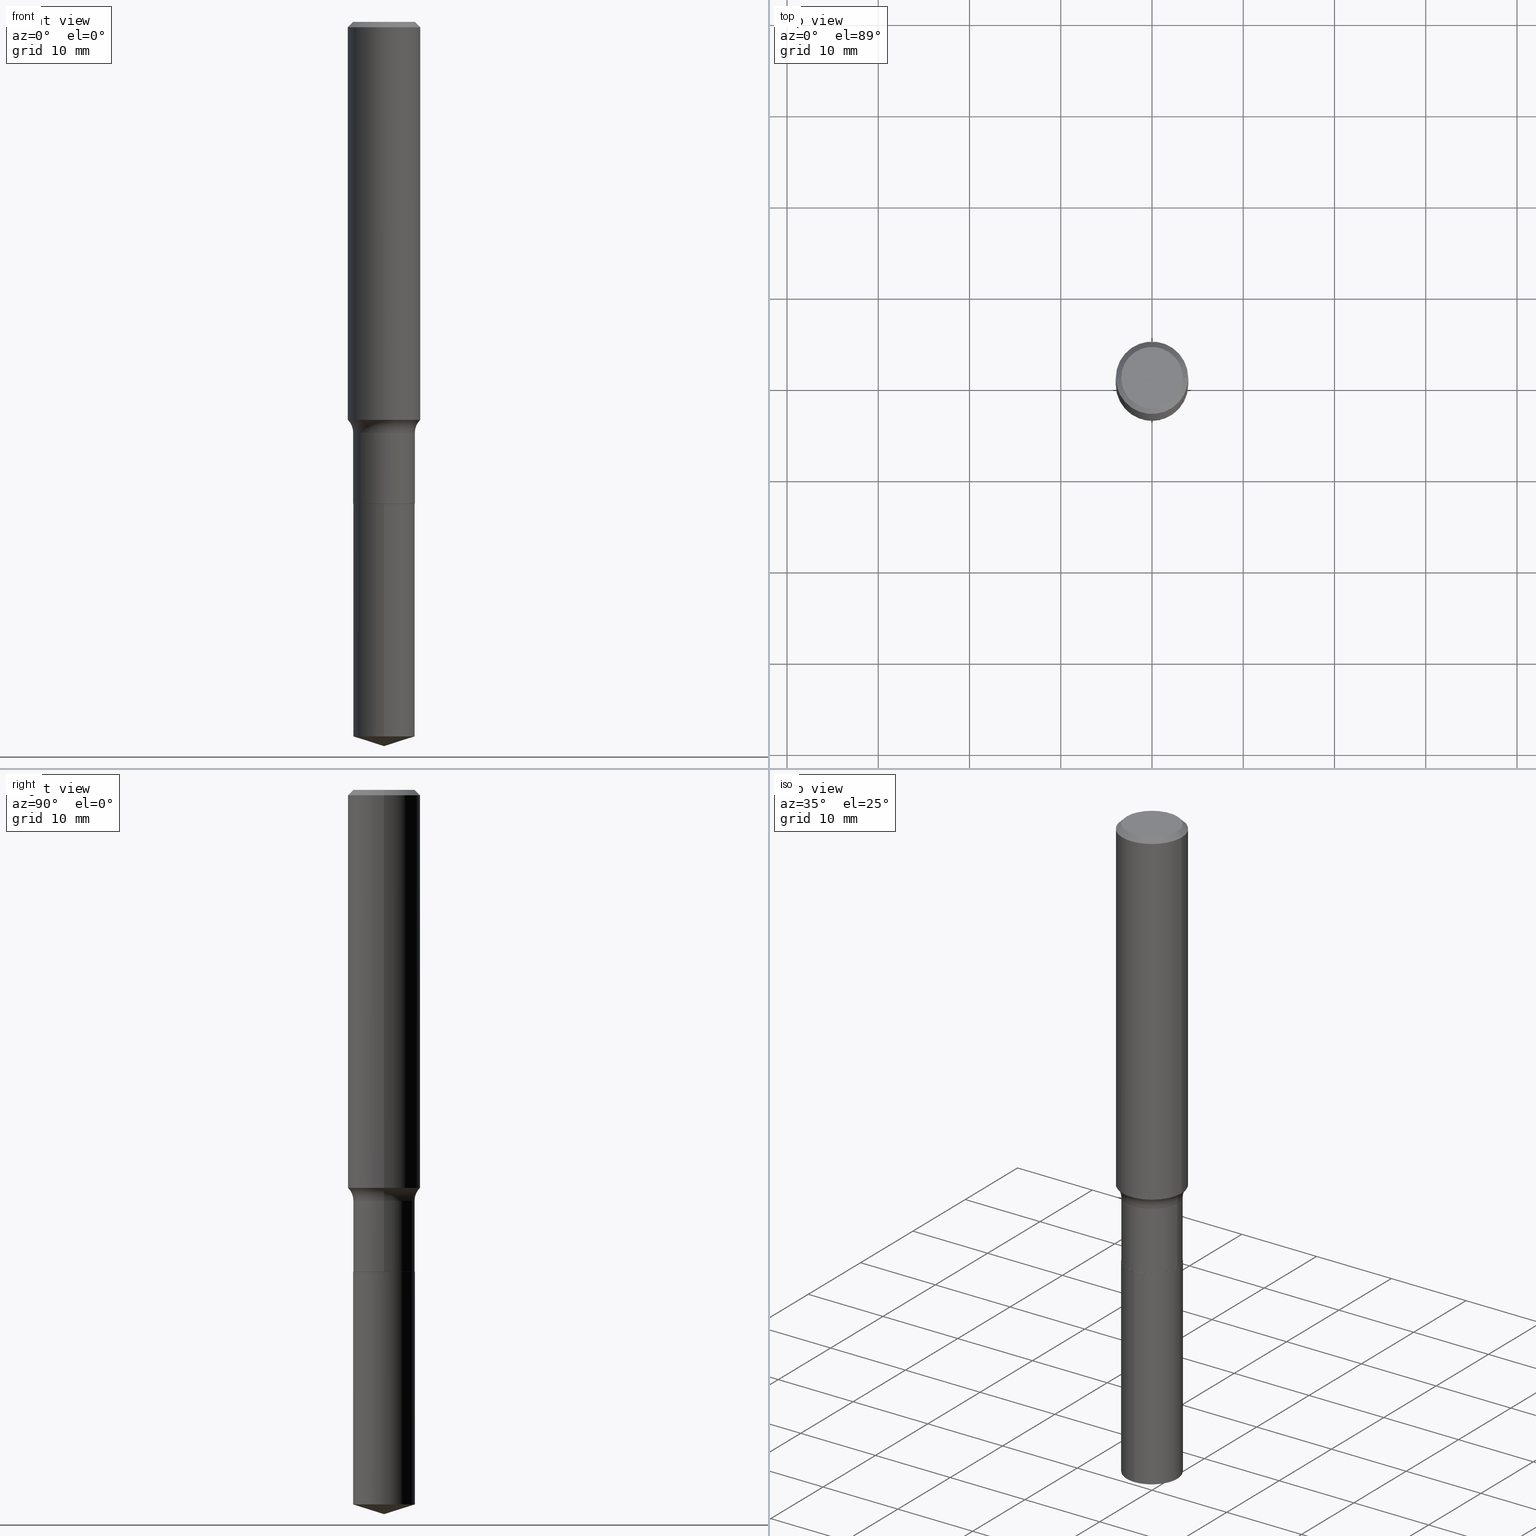
[diagram: canonical four-view strip — front | top / right | iso, engineering-drawing reading convention]
A machine part, canonical four-view strip (front | top / right | iso — engineering-drawing reading convention). The complete STEP part file that produces these views, byte-faithful:
ISO-10303-21;
HEADER;
FILE_DESCRIPTION (( 'STEP AP203' ),
    '1' );
FILE_NAME ('51607.STEP',
    '2024-04-19T13:08:31',
    ( '' ),
    ( '' ),
    'SwSTEP 2.0',
    'SolidWorks 2023',
    '' );
FILE_SCHEMA (( 'CONFIG_CONTROL_DESIGN' ));
ENDSEC;

DATA;
#1 = CARTESIAN_POINT ( 'NONE',  ( 4.198978237127225302E-29, -5.995028078075716865E-15, -1.717044284722451630 ) ) ;
#2 = CIRCLE ( 'NONE', #283, 0.07799999999999999989 ) ;
#3 = CC_DESIGN_APPROVAL ( #52, ( #251 ) ) ;
#4 = DIRECTION ( 'NONE',  ( 1.000000000000000000, -6.982962677686265922E-15, 0.000000000000000000 ) ) ;
#5 = MANIFOLD_SOLID_BREP ( 'Body-Move/Copy2[1]', #272 ) ;
#6 = EDGE_CURVE ( 'NONE', #360, #139, #62, .T. ) ;
#7 = LINE ( 'NONE', #467, #10 ) ;
#8 = ORIENTED_EDGE ( 'NONE', *, *, #163, .F. ) ;
#9 = DIRECTION ( 'NONE',  ( 1.000000000000000000, -6.982962677686270655E-15, 0.000000000000000000 ) ) ;
#10 = VECTOR ( 'NONE', #274, 39.37007874015748143 ) ;
#11 = CC_DESIGN_APPROVAL ( #45, ( #39 ) ) ;
#12 =( LENGTH_UNIT ( ) NAMED_UNIT ( * ) SI_UNIT ( $, .METRE. ) );
#13 = CARTESIAN_POINT ( 'NONE',  ( 5.081684179252714350E-29, -7.255298222116057555E-15, -2.078000000000000291 ) ) ;
#14 = CC_DESIGN_DATE_AND_TIME_ASSIGNMENT ( #432, #317, ( #251 ) ) ;
#15 = EDGE_CURVE ( 'NONE', #438, #214, #229, .T. ) ;
#16 = APPROVAL_ROLE ( '' ) ;
#17 = DIRECTION ( 'NONE',  ( -1.000000000000000000, 7.105427357600997914E-15, 0.000000000000000000 ) ) ;
#18 = APPROVAL_STATUS ( 'not_yet_approved' ) ;
#19 = ORIENTED_EDGE ( 'NONE', *, *, #389, .T. ) ;
#20 = VECTOR ( 'NONE', #261, 39.37007874015748143 ) ;
#21 = APPROVAL_DATE_TIME ( #233, #52 ) ;
#22 = EDGE_LOOP ( 'NONE', ( #481, #206, #66, #306 ) ) ;
#23 = ORIENTED_EDGE ( 'NONE', *, *, #440, .F. ) ;
#24 = ADVANCED_FACE ( 'NONE', ( #81 ), #446, .T. ) ;
#25 = CARTESIAN_POINT ( 'NONE',  ( 5.082906913655807152E-29, -7.257043962785479847E-15, -2.078500000000000458 ) ) ;
#26 = EDGE_LOOP ( 'NONE', ( #222, #126, #474 ) ) ;
#27 = DIRECTION ( 'NONE',  ( 1.000000000000000000, -6.982962677686268288E-15, 4.876286914311434227E-29 ) ) ;
#28 = AXIS2_PLACEMENT_3D ( 'NONE', #1, #280, #4 ) ;
#29 = VECTOR ( 'NONE', #180, 39.37007874015748854 ) ;
#30 = ORIENTED_EDGE ( 'NONE', *, *, #275, .F. ) ;
#31 = CARTESIAN_POINT ( 'NONE',  ( -0.1330000000000000349, -5.777127183113776557E-15, -2.078000000000000291 ) ) ;
#32 = DIRECTION ( 'NONE',  ( 1.000000000000000000, -6.982962677686262766E-15, 0.000000000000000000 ) ) ;
#33 = LINE ( 'NONE', #413, #29 ) ;
#34 = DIRECTION ( 'NONE',  ( -2.445397776854070034E-29, 3.491583056887971408E-15, 1.000000000000000000 ) ) ;
#35 = APPROVAL_STATUS ( 'not_yet_approved' ) ;
#36 = FACE_OUTER_BOUND ( 'NONE', #73, .T. ) ;
#37 = AXIS2_PLACEMENT_3D ( 'NONE', #156, #190, #32 ) ;
#38 = VERTEX_POINT ( 'NONE', #226 ) ;
#39 = SECURITY_CLASSIFICATION ( '', '', #320 ) ;
#40 = DIRECTION ( 'NONE',  ( -2.445468806185136597E-29, 3.491481338843145583E-15, 1.000000000000000000 ) ) ;
#41 = APPROVAL ( #18, 'UNSPECIFIED' ) ;
#42 = CARTESIAN_POINT ( 'NONE',  ( 4.334838005843773806E-29, -6.188999821233359788E-15, -1.772600000000000176 ) ) ;
#43 = DIRECTION ( 'NONE',  ( -2.445397776854070034E-29, 3.491583056887971408E-15, 1.000000000000000000 ) ) ;
#44 = APPROVAL_PERSON_ORGANIZATION ( #55, #41, #276 ) ;
#45 = APPROVAL ( #35, 'UNSPECIFIED' ) ;
#46 = FACE_OUTER_BOUND ( 'NONE', #104, .T. ) ;
#47 = PERSON_AND_ORGANIZATION ( #322, #473 ) ;
#48 = CARTESIAN_POINT ( 'NONE',  ( -0.1329999999999999793, -5.777127183113776557E-15, -1.772600000000000176 ) ) ;
#49 = EDGE_LOOP ( 'NONE', ( #455, #364, #69, #8 ) ) ;
#50 = LENGTH_MEASURE_WITH_UNIT ( LENGTH_MEASURE( 0.02539999999999999897 ), #12 );
#51 = DIRECTION ( 'NONE',  ( -2.445468806185136597E-29, 3.491481338843145583E-15, 1.000000000000000000 ) ) ;
#52 = APPROVAL ( #286, 'UNSPECIFIED' ) ;
#53 = EDGE_CURVE ( 'NONE', #139, #360, #463, .T. ) ;
#54 = VECTOR ( 'NONE', #416, 39.37007874015748143 ) ;
#55 = PERSON_AND_ORGANIZATION ( #322, #473 ) ;
#56 = PLANE ( 'NONE',  #95 ) ;
#57 = ADVANCED_FACE ( 'NONE', ( #78 ), #457, .F. ) ;
#58 = PERSON_AND_ORGANIZATION_ROLE ( 'design_supplier' ) ;
#59 = VERTEX_POINT ( 'NONE', #375 ) ;
#60 = PERSON_AND_ORGANIZATION ( #322, #473 ) ;
#61 = ORIENTED_EDGE ( 'NONE', *, *, #389, .F. ) ;
#62 = CIRCLE ( 'NONE', #362, 0.1562500000000000000 ) ;
#63 = AXIS2_PLACEMENT_3D ( 'NONE', #102, #300, #219 ) ;
#64 = ORIENTED_EDGE ( 'NONE', *, *, #237, .F. ) ;
#65 = DIRECTION ( 'NONE',  ( -2.445468806185136597E-29, 3.491481338843145583E-15, 1.000000000000000000 ) ) ;
#66 = ORIENTED_EDGE ( 'NONE', *, *, #379, .T. ) ;
#67 = DIRECTION ( 'NONE',  ( 1.000000000000000000, -6.982962677686269077E-15, 0.000000000000000000 ) ) ;
#68 = APPLICATION_CONTEXT ( 'configuration controlled 3d designs of mechanical parts and assemblies' ) ;
#69 = ORIENTED_EDGE ( 'NONE', *, *, #431, .F. ) ;
#70 = DIRECTION ( 'NONE',  ( 2.445468806185136597E-29, -3.491481338843145583E-15, -1.000000000000000000 ) ) ;
#71 = CIRCLE ( 'NONE', #225, 0.1328125000000000000 ) ;
#72 = AXIS2_PLACEMENT_3D ( 'NONE', #361, #97, #313 ) ;
#73 = EDGE_LOOP ( 'NONE', ( #470, #384 ) ) ;
#74 = SHAPE_DEFINITION_REPRESENTATION ( #223, #346 ) ;
#75 = CARTESIAN_POINT ( 'NONE',  ( 4.334838005843773806E-29, -6.188999821233359788E-15, -1.772600000000000176 ) ) ;
#76 = CARTESIAN_POINT ( 'NONE',  ( 7.539468569803454175E-29, -1.076456700790748911E-14, -3.083065261079095176 ) ) ;
#77 = CARTESIAN_POINT ( 'NONE',  ( 7.641868052668967944E-29, -1.091119705277491292E-14, -3.125000000000000000 ) ) ;
#78 = FACE_OUTER_BOUND ( 'NONE', #22, .T. ) ;
#79 = CC_DESIGN_PERSON_AND_ORGANIZATION_ASSIGNMENT ( #400, #58, ( #426 ) ) ;
#80 = ORIENTED_EDGE ( 'NONE', *, *, #121, .T. ) ;
#81 = FACE_OUTER_BOUND ( 'NONE', #49, .T. ) ;
#82 = CARTESIAN_POINT ( 'NONE',  ( 5.082906913655807152E-29, -7.257043962785479847E-15, -2.078500000000000458 ) ) ;
#83 = EDGE_CURVE ( 'NONE', #238, #371, #101, .T. ) ;
#84 = LINE ( 'NONE', #230, #189 ) ;
#85 = CONICAL_SURFACE ( 'NONE', #307, 124.8659371009138965, 1.265363707695889017 ) ;
#86 = VECTOR ( 'NONE', #188, 39.37007874015748143 ) ;
#87 = DIRECTION ( 'NONE',  ( -1.000000000000000000, 6.982962677686266711E-15, 0.000000000000000000 ) ) ;
#88 = CALENDAR_DATE ( 2024, 19, 4 ) ;
#89 = CARTESIAN_POINT ( 'NONE',  ( 0.000000000000000000, 0.000000000000000000, 0.000000000000000000 ) ) ;
#90 = ADVANCED_FACE ( 'NONE', ( #335 ), #120, .T. ) ;
#91 = CC_DESIGN_DATE_AND_TIME_ASSIGNMENT ( #359, #475, ( #39 ) ) ;
#92 = APPROVAL_DATE_TIME ( #169, #41 ) ;
#93 = APPLICATION_CONTEXT ( 'configuration controlled 3d designs of mechanical parts and assemblies' ) ;
#94 = CARTESIAN_POINT ( 'NONE',  ( 5.082906913655807152E-29, -7.257043962785479847E-15, -2.078500000000000458 ) ) ;
#95 = AXIS2_PLACEMENT_3D ( 'NONE', #25, #327, #479 ) ;
#96 = ORIENTED_EDGE ( 'NONE', *, *, #315, .T. ) ;
#97 = DIRECTION ( 'NONE',  ( -2.438088387897960049E-29, 3.491481338843145188E-15, 1.000000000000000000 ) ) ;
#98 = EDGE_LOOP ( 'NONE', ( #485, #321, #462, #405 ) ) ;
#99 = EDGE_CURVE ( 'NONE', #438, #263, #113, .T. ) ;
#100 = VERTEX_POINT ( 'NONE', #341 ) ;
#101 = CIRCLE ( 'NONE', #37, 0.1325000000000000067 ) ;
#102 = CARTESIAN_POINT ( 'NONE',  ( -7.955031918821654702E-47, 1.135767727816384474E-32, 3.252968060235159383E-18 ) ) ;
#103 = APPROVAL_PERSON_ORGANIZATION ( #216, #45, #153 ) ;
#104 = EDGE_LOOP ( 'NONE', ( #175, #138, #176 ) ) ;
#105 = CARTESIAN_POINT ( 'NONE',  ( 9.450218385610086339E-16, 0.1329999999999927351, -2.078500000000000902 ) ) ;
#106 = EDGE_CURVE ( 'NONE', #100, #38, #299, .T. ) ;
#107 = EDGE_LOOP ( 'NONE', ( #212, #403, #292, #252 ) ) ;
#108 = DIRECTION ( 'NONE',  ( -2.445468806185136597E-29, 3.491481338843145583E-15, 1.000000000000000000 ) ) ;
#109 = DIRECTION ( 'NONE',  ( 1.000000000000000000, -6.982962677686266711E-15, 0.000000000000000000 ) ) ;
#110 = DIRECTION ( 'NONE',  ( 2.438088387897960049E-29, -3.491481338843145188E-15, -1.000000000000000000 ) ) ;
#111 = AXIS2_PLACEMENT_3D ( 'NONE', #337, #297, #417 ) ;
#112 =( GEOMETRIC_REPRESENTATION_CONTEXT ( 3 ) GLOBAL_UNCERTAINTY_ASSIGNED_CONTEXT ( ( #298 ) ) GLOBAL_UNIT_ASSIGNED_CONTEXT ( ( #245, #435, #353 ) ) REPRESENTATION_CONTEXT ( 'NONE', 'WORKASPACE' ) );
#113 = LINE ( 'NONE', #380, #20 ) ;
#114 = DIRECTION ( 'NONE',  ( 0.7071067811866199593, -2.468850131083015945E-15, 0.7071067811864750752 ) ) ;
#115 = CARTESIAN_POINT ( 'NONE',  ( 5.731567514496448931E-31, -8.183159387913672688E-17, -0.02343750000000014225 ) ) ;
#116 = CC_DESIGN_PERSON_AND_ORGANIZATION_ASSIGNMENT ( #174, #357, ( #426 ) ) ;
#117 = DIRECTION ( 'NONE',  ( -6.982962677686265922E-15, -1.000000000000000000, 4.108042095735734288E-15 ) ) ;
#118 = CALENDAR_DATE ( 2024, 19, 4 ) ;
#119 = AXIS2_PLACEMENT_3D ( 'NONE', #82, #314, #201 ) ;
#120 = CYLINDRICAL_SURFACE ( 'NONE', #111, 0.1562500000000001110 ) ;
#121 = EDGE_CURVE ( 'NONE', #182, #360, #268, .T. ) ;
#122 = CARTESIAN_POINT ( 'NONE',  ( 5.082906913655807152E-29, -7.257043962785479847E-15, -2.078500000000000458 ) ) ;
#123 = DIRECTION ( 'NONE',  ( 1.000000000000000000, -6.982962677686267499E-15, 4.876176775795936353E-29 ) ) ;
#124 = DIRECTION ( 'NONE',  ( -2.445468806185136877E-29, 3.491481338843145188E-15, 1.000000000000000000 ) ) ;
#125 = AXIS2_PLACEMENT_3D ( 'NONE', #115, #40, #109 ) ;
#126 = ORIENTED_EDGE ( 'NONE', *, *, #369, .T. ) ;
#127 = CIRCLE ( 'NONE', #207, 0.1562500000000002220 ) ;
#128 = PERSON_AND_ORGANIZATION_ROLE ( 'creator' ) ;
#129 = DIRECTION ( 'NONE',  ( -2.445468806185136597E-29, 3.491481338843145583E-15, 1.000000000000000000 ) ) ;
#130 = CARTESIAN_POINT ( 'NONE',  ( 0.000000000000000000, 0.000000000000000000, 0.000000000000000000 ) ) ;
#131 = DIRECTION ( 'NONE',  ( -6.982962677686266711E-15, -1.000000000000000000, 3.500519750498737170E-15 ) ) ;
#132 = COORDINATED_UNIVERSAL_TIME_OFFSET ( 5, 0, .BEHIND. ) ;
#133 = PLANE ( 'NONE',  #181 ) ;
#134 = EDGE_LOOP ( 'NONE', ( #285, #295, #349, #247 ) ) ;
#135 = AXIS2_PLACEMENT_3D ( 'NONE', #422, #34, #117 ) ;
#136 = CONICAL_SURFACE ( 'NONE', #150, 124.8659371009138965, 1.265363707695889017 ) ;
#137 = EDGE_CURVE ( 'NONE', #284, #328, #241, .T. ) ;
#138 = ORIENTED_EDGE ( 'NONE', *, *, #232, .T. ) ;
#139 = VERTEX_POINT ( 'NONE', #419 ) ;
#140 = ORIENTED_EDGE ( 'NONE', *, *, #53, .F. ) ;
#141 = ADVANCED_FACE ( 'NONE', ( #430 ), #194, .T. ) ;
#142 = VECTOR ( 'NONE', #394, 39.37007874015748143 ) ;
#143 = DIRECTION ( 'NONE',  ( 1.000000000000000000, -6.982962677686269077E-15, 0.000000000000000000 ) ) ;
#144 = ORIENTED_EDGE ( 'NONE', *, *, #240, .T. ) ;
#145 = FACE_OUTER_BOUND ( 'NONE', #401, .T. ) ;
#146 = EDGE_LOOP ( 'NONE', ( #23, #61, #80, #414 ) ) ;
#147 = DIRECTION ( 'NONE',  ( 1.000000000000000000, -6.982962677686262766E-15, 0.000000000000000000 ) ) ;
#148 = DIRECTION ( 'NONE',  ( -2.445468806185136597E-29, 3.491481338843145583E-15, 1.000000000000000000 ) ) ;
#149 = CARTESIAN_POINT ( 'NONE',  ( -3.977515959410827351E-47, 5.678838639081922371E-33, 1.626484030117579692E-18 ) ) ;
#150 = AXIS2_PLACEMENT_3D ( 'NONE', #340, #303, #490 ) ;
#151 = AXIS2_PLACEMENT_3D ( 'NONE', #439, #70, #443 ) ;
#152 = ORIENTED_EDGE ( 'NONE', *, *, #15, .F. ) ;
#153 = APPROVAL_ROLE ( '' ) ;
#154 = LINE ( 'NONE', #453, #54 ) ;
#155 = DIRECTION ( 'NONE',  ( 1.000000000000000000, -6.982962677686267499E-15, 0.000000000000000000 ) ) ;
#156 = CARTESIAN_POINT ( 'NONE',  ( 5.082906913655807152E-29, -7.257043962785479847E-15, -2.078500000000000458 ) ) ;
#157 = LINE ( 'NONE', #423, #329 ) ;
#158 = LOCAL_TIME ( 9, 8, 31.00000000000000000, #204 ) ;
#159 = CARTESIAN_POINT ( 'NONE',  ( 0.1330000000000000071, -8.184032258248332163E-15, -2.078000000000000291 ) ) ;
#160 = FACE_OUTER_BOUND ( 'NONE', #209, .T. ) ;
#161 = EDGE_LOOP ( 'NONE', ( #325, #96, #191, #152 ) ) ;
#162 = FACE_OUTER_BOUND ( 'NONE', #287, .T. ) ;
#163 = EDGE_CURVE ( 'NONE', #214, #434, #157, .T. ) ;
#164 = AXIS2_PLACEMENT_3D ( 'NONE', #75, #108, #143 ) ;
#165 = CARTESIAN_POINT ( 'NONE',  ( -0.1562500000000001110, 1.110223024625157329E-15, -7.685836078523295364E-30 ) ) ;
#166 = APPLICATION_PROTOCOL_DEFINITION ( 'international standard', 'config_control_design', 1994, #93 ) ;
#167 = DIRECTION ( 'NONE',  ( -2.445468806185136597E-29, 3.491481338843145583E-15, 1.000000000000000000 ) ) ;
#168 = ADVANCED_FACE ( 'NONE', ( #270 ), #471, .T. ) ;
#169 = DATE_AND_TIME ( #243, #249 ) ;
#170 = ORIENTED_EDGE ( 'NONE', *, *, #163, .T. ) ;
#171 = AXIS2_PLACEMENT_3D ( 'NONE', #257, #184, #487 ) ;
#172 = LOCAL_TIME ( 9, 8, 31.00000000000000000, #381 ) ;
#173 = MANIFOLD_SOLID_BREP ( 'Body-Move/Copy2[2]', #224 ) ;
#174 = PERSON_AND_ORGANIZATION ( #322, #473 ) ;
#175 = ORIENTED_EDGE ( 'NONE', *, *, #369, .F. ) ;
#176 = ORIENTED_EDGE ( 'NONE', *, *, #106, .F. ) ;
#177 = DIRECTION ( 'NONE',  ( -1.000000000000000000, 6.982962677686265922E-15, -4.876176775795935793E-29 ) ) ;
#178 = ORIENTED_EDGE ( 'NONE', *, *, #379, .F. ) ;
#179 = EDGE_CURVE ( 'NONE', #328, #284, #338, .T. ) ;
#180 = DIRECTION ( 'NONE',  ( -6.659769872151625778E-15, -0.9537169507482258224, 0.3007057995042763388 ) ) ;
#181 = AXIS2_PLACEMENT_3D ( 'NONE', #149, #110, #177 ) ;
#182 = VERTEX_POINT ( 'NONE', #466 ) ;
#183 = CARTESIAN_POINT ( 'NONE',  ( 0.1325000000000000067, -8.182286517578909871E-15, -2.078500000000000458 ) ) ;
#184 = DIRECTION ( 'NONE',  ( -2.445468806185136597E-29, 3.491481338843145583E-15, 1.000000000000000000 ) ) ;
#185 = EDGE_CURVE ( 'NONE', #38, #328, #7, .T. ) ;
#186 = CARTESIAN_POINT ( 'NONE',  ( -0.1325000000000000067, -6.312925610729235458E-15, -2.078500000000000458 ) ) ;
#187 = ORIENTED_EDGE ( 'NONE', *, *, #185, .F. ) ;
#188 = DIRECTION ( 'NONE',  ( 0.7071067811865453523, -7.319954787623248157E-15, -0.7071067811865496822 ) ) ;
#189 = VECTOR ( 'NONE', #344, 39.37007874015748854 ) ;
#190 = DIRECTION ( 'NONE',  ( -2.445468806185136597E-29, 3.491481338843145583E-15, 1.000000000000000000 ) ) ;
#191 = ORIENTED_EDGE ( 'NONE', *, *, #415, .T. ) ;
#192 = ADVANCED_FACE ( 'NONE', ( #162 ), #228, .T. ) ;
#193 = ADVANCED_FACE ( 'NONE', ( #46 ), #85, .T. ) ;
#194 = CYLINDRICAL_SURFACE ( 'NONE', #449, 0.1330000000000000071 ) ;
#195 = AXIS2_PLACEMENT_3D ( 'NONE', #310, #429, #347 ) ;
#196 = DIRECTION ( 'NONE',  ( 1.000000000000000000, -6.982962677686266711E-15, 4.883557194083113462E-29 ) ) ;
#197 = CARTESIAN_POINT ( 'NONE',  ( 0.1325000000000000067, -8.182286517578909871E-15, -2.078500000000000458 ) ) ;
#198 = ADVANCED_FACE ( 'NONE', ( #160 ), #259, .F. ) ;
#199 = PERSON_AND_ORGANIZATION ( #322, #473 ) ;
#200 = CARTESIAN_POINT ( 'NONE',  ( 0.2109999999999999376, -7.662404946225161653E-15, -1.772600000000000176 ) ) ;
#201 = DIRECTION ( 'NONE',  ( 1.000000000000000000, -6.982962677686262766E-15, 0.000000000000000000 ) ) ;
#202 = AXIS2_PLACEMENT_3D ( 'NONE', #427, #239, #87 ) ;
#203 = FACE_OUTER_BOUND ( 'NONE', #444, .T. ) ;
#204 = COORDINATED_UNIVERSAL_TIME_OFFSET ( 5, 0, .BEHIND. ) ;
#205 = ORIENTED_EDGE ( 'NONE', *, *, #431, .T. ) ;
#206 = ORIENTED_EDGE ( 'NONE', *, *, #275, .T. ) ;
#207 = AXIS2_PLACEMENT_3D ( 'NONE', #486, #65, #213 ) ;
#208 = EDGE_CURVE ( 'NONE', #59, #448, #248, .T. ) ;
#209 = EDGE_LOOP ( 'NONE', ( #30, #436, #409, #205 ) ) ;
#210 = CARTESIAN_POINT ( 'NONE',  ( -0.1562500000000000000, -1.928206811352268530E-15, -0.02343750000000014225 ) ) ;
#211 = ADVANCED_FACE ( 'NONE', ( #271 ), #387, .T. ) ;
#212 = ORIENTED_EDGE ( 'NONE', *, *, #240, .F. ) ;
#213 = DIRECTION ( 'NONE',  ( 1.000000000000000000, -6.982962677686265922E-15, 0.000000000000000000 ) ) ;
#214 = VERTEX_POINT ( 'NONE', #159 ) ;
#215 = AXIS2_PLACEMENT_3D ( 'NONE', #200, #351, #9 ) ;
#216 = PERSON_AND_ORGANIZATION ( #322, #473 ) ;
#217 = DIRECTION ( 'NONE',  ( 1.000000000000000000, -6.982962677686266711E-15, 4.876176775795936353E-29 ) ) ;
#218 = DIRECTION ( 'NONE',  ( 1.000000000000000000, -6.982962677686266711E-15, 4.883557194083113462E-29 ) ) ;
#219 = DIRECTION ( 'NONE',  ( 1.000000000000000000, -6.982962677686268288E-15, 4.876286914311434227E-29 ) ) ;
#220 = DIRECTION ( 'NONE',  ( -6.982962677686265922E-15, -1.000000000000000000, 4.108042095735734288E-15 ) ) ;
#221 = PLANE ( 'NONE',  #72 ) ;
#222 = ORIENTED_EDGE ( 'NONE', *, *, #232, .F. ) ;
#223 = PRODUCT_DEFINITION_SHAPE ( 'NONE', 'NONE',  #251 ) ;
#224 = CLOSED_SHELL ( 'NONE', ( #385, #386, #395, #57, #24, #192, #198, #90, #255, #324, #489, #168 ) ) ;
#225 = AXIS2_PLACEMENT_3D ( 'NONE', #358, #167, #27 ) ;
#226 = CARTESIAN_POINT ( 'NONE',  ( 9.450218385610088311E-16, 0.1329999999999892657, -3.083065261079096064 ) ) ;
#227 = ORIENTED_EDGE ( 'NONE', *, *, #179, .T. ) ;
#228 = CYLINDRICAL_SURFACE ( 'NONE', #352, 0.1329999999999999793 ) ;
#229 = CIRCLE ( 'NONE', #345, 0.1330000000000000071 ) ;
#230 = CARTESIAN_POINT ( 'NONE',  ( 7.642165910758184966E-29, -1.091077421086257091E-14, -3.125000000000000000 ) ) ;
#231 = LOCAL_TIME ( 9, 8, 31.00000000000000000, #472 ) ;
#232 = EDGE_CURVE ( 'NONE', #483, #38, #84, .T. ) ;
#233 = DATE_AND_TIME ( #468, #231 ) ;
#234 = CARTESIAN_POINT ( 'NONE',  ( 0.1562500000000001110, -1.091087918388479962E-15, 7.619026212181155982E-30 ) ) ;
#235 = DIMENSIONAL_EXPONENTS ( 1.000000000000000000, 0.000000000000000000, 0.000000000000000000, 0.000000000000000000, 0.000000000000000000, 0.000000000000000000, 0.000000000000000000 ) ;
#236 = CARTESIAN_POINT ( 'NONE',  ( -8.863348733861720438E-28, 1.265529142456604431E-13, 36.24507874015748143 ) ) ;
#237 = EDGE_CURVE ( 'NONE', #214, #438, #312, .T. ) ;
#238 = VERTEX_POINT ( 'NONE', #197 ) ;
#239 = DIRECTION ( 'NONE',  ( 2.445468806185136597E-29, -3.491481338843145583E-15, -1.000000000000000000 ) ) ;
#240 = EDGE_CURVE ( 'NONE', #59, #360, #461, .T. ) ;
#241 = CIRCLE ( 'NONE', #135, 0.1330000000000000071 ) ;
#242 = CIRCLE ( 'NONE', #63, 0.1328125000000000000 ) ;
#243 = CALENDAR_DATE ( 2024, 19, 4 ) ;
#244 = ORIENTED_EDGE ( 'NONE', *, *, #288, .T. ) ;
#245 =( CONVERSION_BASED_UNIT ( 'INCH', #50 ) LENGTH_UNIT ( ) NAMED_UNIT ( #235 ) );
#246 = EDGE_LOOP ( 'NONE', ( #187, #442, #244, #326 ) ) ;
#247 = ORIENTED_EDGE ( 'NONE', *, *, #121, .F. ) ;
#248 = CIRCLE ( 'NONE', #28, 0.1562500000000002220 ) ;
#249 = LOCAL_TIME ( 9, 8, 31.00000000000000000, #132 ) ;
#250 = FACE_OUTER_BOUND ( 'NONE', #407, .T. ) ;
#251 = PRODUCT_DEFINITION ( 'UNKNOWN', '', #426, #269 ) ;
#252 = ORIENTED_EDGE ( 'NONE', *, *, #6, .F. ) ;
#253 = CARTESIAN_POINT ( 'NONE',  ( 4.334838005843773806E-29, -6.188999821233359788E-15, -1.772600000000000176 ) ) ;
#254 = ORIENTED_EDGE ( 'NONE', *, *, #415, .F. ) ;
#255 = ADVANCED_FACE ( 'NONE', ( #316 ), #420, .T. ) ;
#256 = CARTESIAN_POINT ( 'NONE',  ( -9.287340361322225436E-16, -0.1330000000000072513, -2.078499999999999570 ) ) ;
#257 = CARTESIAN_POINT ( 'NONE',  ( 0.000000000000000000, 0.000000000000000000, 0.000000000000000000 ) ) ;
#258 = EDGE_CURVE ( 'NONE', #448, #139, #459, .T. ) ;
#259 = TOROIDAL_SURFACE ( 'NONE', #404, 0.2109999999999999376, 0.07799999999999999989 ) ;
#260 = DIRECTION ( 'NONE',  ( -6.982962677686265922E-15, -1.000000000000000000, 4.108042095735734288E-15 ) ) ;
#261 = DIRECTION ( 'NONE',  ( -2.445468806185136877E-29, 3.491481338843145188E-15, 1.000000000000000000 ) ) ;
#262 = CARTESIAN_POINT ( 'NONE',  ( 0.1562500000000002498, -7.086115996464197617E-15, -1.717044284722451630 ) ) ;
#263 = VERTEX_POINT ( 'NONE', #48 ) ;
#264 = DIRECTION ( 'NONE',  ( -2.445468806185136597E-29, 3.491481338843145583E-15, 1.000000000000000000 ) ) ;
#265 = AXIS2_PLACEMENT_3D ( 'NONE', #76, #452, #220 ) ;
#266 = EDGE_CURVE ( 'NONE', #448, #434, #480, .T. ) ;
#267 = AXIS2_PLACEMENT_3D ( 'NONE', #376, #451, #217 ) ;
#268 = LINE ( 'NONE', #305, #388 ) ;
#269 = DESIGN_CONTEXT ( 'detailed design', #93, 'design' ) ;
#270 = FACE_OUTER_BOUND ( 'NONE', #161, .T. ) ;
#271 = FACE_OUTER_BOUND ( 'NONE', #98, .T. ) ;
#272 = CLOSED_SHELL ( 'NONE', ( #211, #193, #454, #141, #421 ) ) ;
#273 = CONICAL_SURFACE ( 'NONE', #151, 0.1562500000000000000, 0.7853981633974452814 ) ;
#274 = DIRECTION ( 'NONE',  ( -2.445397776854070034E-29, 3.491583056887971803E-15, 1.000000000000000000 ) ) ;
#275 = EDGE_CURVE ( 'NONE', #59, #263, #2, .T. ) ;
#276 = APPROVAL_ROLE ( '' ) ;
#277 = CARTESIAN_POINT ( 'NONE',  ( -0.2109999999999999376, -4.689754648779548642E-15, -1.772600000000000176 ) ) ;
#278 = EDGE_CURVE ( 'NONE', #368, #182, #71, .T. ) ;
#279 = MECHANICAL_CONTEXT ( 'NONE', #68, 'mechanical' ) ;
#280 = DIRECTION ( 'NONE',  ( -2.445468806185136597E-29, 3.491481338843145583E-15, 1.000000000000000000 ) ) ;
#281 = APPLICATION_PROTOCOL_DEFINITION ( 'international standard', 'config_control_design', 1994, #68 ) ;
#282 = DIRECTION ( 'NONE',  ( 1.000000000000000000, -6.982962677686262766E-15, 0.000000000000000000 ) ) ;
#283 = AXIS2_PLACEMENT_3D ( 'NONE', #277, #447, #17 ) ;
#284 = VERTEX_POINT ( 'NONE', #256 ) ;
#285 = ORIENTED_EDGE ( 'NONE', *, *, #278, .F. ) ;
#286 = APPROVAL_STATUS ( 'not_yet_approved' ) ;
#287 = EDGE_LOOP ( 'NONE', ( #366, #476, #170, #178 ) ) ;
#288 = EDGE_CURVE ( 'NONE', #100, #284, #445, .T. ) ;
#289 = ORIENTED_EDGE ( 'NONE', *, *, #343, .T. ) ;
#290 = VECTOR ( 'NONE', #124, 39.37007874015748143 ) ;
#291 = DIRECTION ( 'NONE',  ( -2.445468806185136597E-29, 3.491481338843145583E-15, 1.000000000000000000 ) ) ;
#292 = ORIENTED_EDGE ( 'NONE', *, *, #258, .T. ) ;
#293 = CARTESIAN_POINT ( 'NONE',  ( 0.1328125000000000000, -1.032472148179985084E-15, 3.252968060242011842E-18 ) ) ;
#294 = CC_DESIGN_PERSON_AND_ORGANIZATION_ASSIGNMENT ( #465, #128, ( #251 ) ) ;
#295 = ORIENTED_EDGE ( 'NONE', *, *, #440, .T. ) ;
#296 = CARTESIAN_POINT ( 'NONE',  ( -9.287340361322225436E-16, -0.1330000000000072513, -2.078499999999999570 ) ) ;
#297 = DIRECTION ( 'NONE',  ( -2.445468806185136597E-29, 3.491481338843145583E-15, 1.000000000000000000 ) ) ;
#298 = UNCERTAINTY_MEASURE_WITH_UNIT (LENGTH_MEASURE( 1.000000000000000082E-05 ), #245, 'distance_accuracy_value', 'NONE');
#299 = CIRCLE ( 'NONE', #265, 0.1330000000000000071 ) ;
#300 = DIRECTION ( 'NONE',  ( -2.445468806185136597E-29, 3.491481338843145583E-15, 1.000000000000000000 ) ) ;
#301 = APPROVAL_PERSON_ORGANIZATION ( #60, #52, #16 ) ;
#302 = CARTESIAN_POINT ( 'NONE',  ( 5.731567514496448931E-31, -8.183159387913672688E-17, -0.02343750000000014225 ) ) ;
#303 = DIRECTION ( 'NONE',  ( -2.445397776854070034E-29, 3.491583056887971408E-15, 1.000000000000000000 ) ) ;
#304 = PRODUCT ( '51607', '51607', '', ( #279 ) ) ;
#305 = CARTESIAN_POINT ( 'NONE',  ( -0.1562500000000000000, 1.009256324509342545E-15, -0.02343750000000014225 ) ) ;
#306 = ORIENTED_EDGE ( 'NONE', *, *, #266, .F. ) ;
#307 = AXIS2_PLACEMENT_3D ( 'NONE', #236, #460, #131 ) ;
#308 = CIRCLE ( 'NONE', #164, 0.1329999999999999793 ) ;
#309 = DIRECTION ( 'NONE',  ( -2.445468806185136597E-29, 3.491481338843145583E-15, 1.000000000000000000 ) ) ;
#310 = CARTESIAN_POINT ( 'NONE',  ( 5.082906913655807152E-29, -7.257043962785479847E-15, -2.078500000000000458 ) ) ;
#311 = EDGE_LOOP ( 'NONE', ( #19, #392 ) ) ;
#312 = CIRCLE ( 'NONE', #363, 0.1330000000000000071 ) ;
#313 = DIRECTION ( 'NONE',  ( 1.000000000000000000, -6.982962677686265922E-15, 4.876176775795935793E-29 ) ) ;
#314 = DIRECTION ( 'NONE',  ( -2.445468806185136597E-29, 3.491481338843145583E-15, 1.000000000000000000 ) ) ;
#315 = EDGE_CURVE ( 'NONE', #371, #238, #425, .T. ) ;
#316 = FACE_OUTER_BOUND ( 'NONE', #146, .T. ) ;
#317 = DATE_TIME_ROLE ( 'creation_date' ) ;
#318 = DIRECTION ( 'NONE',  ( -2.445397776854070034E-29, 3.491583056887971408E-15, 1.000000000000000000 ) ) ;
#319 = ORIENTED_EDGE ( 'NONE', *, *, #83, .T. ) ;
#320 = SECURITY_CLASSIFICATION_LEVEL ( 'unclassified' ) ;
#321 = ORIENTED_EDGE ( 'NONE', *, *, #185, .T. ) ;
#322 = PERSON ( 'UNSPECIFIED', 'UNSPECIFIED', 'UNSPECIFIED', ('UNSPECIFIED'), ('UNSPECIFIED'), ('UNSPECIFIED') ) ;
#323 = CIRCLE ( 'NONE', #458, 0.1330000000000000071 ) ;
#324 = ADVANCED_FACE ( 'NONE', ( #370 ), #133, .F. ) ;
#325 = ORIENTED_EDGE ( 'NONE', *, *, #478, .F. ) ;
#326 = ORIENTED_EDGE ( 'NONE', *, *, #179, .F. ) ;
#327 = DIRECTION ( 'NONE',  ( 2.445397776854069473E-29, -3.491583056887971803E-15, -1.000000000000000000 ) ) ;
#328 = VERTEX_POINT ( 'NONE', #105 ) ;
#329 = VECTOR ( 'NONE', #354, 39.37007874015748143 ) ;
#330 = CC_DESIGN_PERSON_AND_ORGANIZATION_ASSIGNMENT ( #47, #393, ( #39 ) ) ;
#331 = CARTESIAN_POINT ( 'NONE',  ( 0.1329999999999999793, -7.117733857365633607E-15, -1.772600000000000176 ) ) ;
#332 = DIRECTION ( 'NONE',  ( -2.445468806185136597E-29, 3.491481338843145583E-15, 1.000000000000000000 ) ) ;
#333 = DATE_AND_TIME ( #118, #172 ) ;
#334 = LINE ( 'NONE', #484, #86 ) ;
#335 = FACE_OUTER_BOUND ( 'NONE', #107, .T. ) ;
#336 = CARTESIAN_POINT ( 'NONE',  ( 5.082906913655807152E-29, -7.257043962785479847E-15, -2.078500000000000458 ) ) ;
#337 = CARTESIAN_POINT ( 'NONE',  ( 0.000000000000000000, 0.000000000000000000, 0.000000000000000000 ) ) ;
#338 = CIRCLE ( 'NONE', #195, 0.1330000000000000071 ) ;
#339 = VECTOR ( 'NONE', #114, 39.37007874015748143 ) ;
#340 = CARTESIAN_POINT ( 'NONE',  ( -8.863348733861720438E-28, 1.265529142456604431E-13, 36.24507874015748143 ) ) ;
#341 = CARTESIAN_POINT ( 'NONE',  ( -9.287340361321982862E-16, -0.1330000000000108040, -3.083065261079094732 ) ) ;
#342 = CARTESIAN_POINT ( 'NONE',  ( 4.334838005843773806E-29, -6.188999821233359788E-15, -1.772600000000000176 ) ) ;
#343 = EDGE_CURVE ( 'NONE', #448, #59, #127, .T. ) ;
#344 = DIRECTION ( 'NONE',  ( 6.776566513254251038E-15, 0.9537169507482280428, 0.3007057995042697329 ) ) ;
#345 = AXIS2_PLACEMENT_3D ( 'NONE', #456, #332, #155 ) ;
#346 = ADVANCED_BREP_SHAPE_REPRESENTATION ( '51607', ( #5, #173, #464 ), #112 ) ;
#347 = DIRECTION ( 'NONE',  ( -6.982962677686265922E-15, -1.000000000000000000, 4.108042095735734288E-15 ) ) ;
#348 = DIRECTION ( 'NONE',  ( -6.982962677686265922E-15, -1.000000000000000000, 4.108042095735734288E-15 ) ) ;
#349 = ORIENTED_EDGE ( 'NONE', *, *, #53, .T. ) ;
#350 = DIRECTION ( 'NONE',  ( 0.000000000000000000, 0.000000000000000000, 1.000000000000000000 ) ) ;
#351 = DIRECTION ( 'NONE',  ( -6.982962677686266711E-15, -1.000000000000000000, 3.491481338843145583E-15 ) ) ;
#352 = AXIS2_PLACEMENT_3D ( 'NONE', #89, #309, #123 ) ;
#353 =( NAMED_UNIT ( * ) SI_UNIT ( $, .STERADIAN. ) SOLID_ANGLE_UNIT ( ) );
#354 = DIRECTION ( 'NONE',  ( -2.445468806185136877E-29, 3.491481338843145188E-15, 1.000000000000000000 ) ) ;
#355 = EDGE_CURVE ( 'NONE', #38, #100, #323, .T. ) ;
#356 = CC_DESIGN_PERSON_AND_ORGANIZATION_ASSIGNMENT ( #199, #437, ( #304 ) ) ;
#357 = PERSON_AND_ORGANIZATION_ROLE ( 'creator' ) ;
#358 = CARTESIAN_POINT ( 'NONE',  ( -7.955031918821654702E-47, 1.135767727816384474E-32, 3.252968060235159383E-18 ) ) ;
#359 = DATE_AND_TIME ( #88, #158 ) ;
#360 = VERTEX_POINT ( 'NONE', #210 ) ;
#361 = CARTESIAN_POINT ( 'NONE',  ( 5.082906913655807152E-29, -7.257043962785479847E-15, -2.078500000000000458 ) ) ;
#362 = AXIS2_PLACEMENT_3D ( 'NONE', #302, #148, #383 ) ;
#363 = AXIS2_PLACEMENT_3D ( 'NONE', #13, #51, #391 ) ;
#364 = ORIENTED_EDGE ( 'NONE', *, *, #99, .T. ) ;
#365 = VECTOR ( 'NONE', #399, 39.37007874015748143 ) ;
#366 = ORIENTED_EDGE ( 'NONE', *, *, #99, .F. ) ;
#367 = CYLINDRICAL_SURFACE ( 'NONE', #267, 0.1562500000000001110 ) ;
#368 = VERTEX_POINT ( 'NONE', #293 ) ;
#369 = EDGE_CURVE ( 'NONE', #483, #100, #33, .T. ) ;
#370 = FACE_OUTER_BOUND ( 'NONE', #311, .T. ) ;
#371 = VERTEX_POINT ( 'NONE', #186 ) ;
#372 = AXIS2_PLACEMENT_3D ( 'NONE', #94, #396, #424 ) ;
#373 = AXIS2_PLACEMENT_3D ( 'NONE', #253, #374, #67 ) ;
#374 = DIRECTION ( 'NONE',  ( -2.445468806185136597E-29, 3.491481338843145583E-15, 1.000000000000000000 ) ) ;
#375 = CARTESIAN_POINT ( 'NONE',  ( -0.1562500000000002498, -4.884805053450557958E-15, -1.717044284722451630 ) ) ;
#376 = CARTESIAN_POINT ( 'NONE',  ( 0.000000000000000000, 0.000000000000000000, 0.000000000000000000 ) ) ;
#377 = DIRECTION ( 'NONE',  ( -0.7071067811865453523, 2.468850131082234184E-15, -0.7071067811865496822 ) ) ;
#378 = FACE_OUTER_BOUND ( 'NONE', #26, .T. ) ;
#379 = EDGE_CURVE ( 'NONE', #263, #434, #308, .T. ) ;
#380 = CARTESIAN_POINT ( 'NONE',  ( -0.1329999999999999793, 9.450218385609331005E-16, -6.542183670039024169E-30 ) ) ;
#381 = COORDINATED_UNIVERSAL_TIME_OFFSET ( 5, 0, .BEHIND. ) ;
#382 = LOCAL_TIME ( 9, 8, 31.00000000000000000, #397 ) ;
#383 = DIRECTION ( 'NONE',  ( 1.000000000000000000, -6.982962677686266711E-15, 0.000000000000000000 ) ) ;
#384 = ORIENTED_EDGE ( 'NONE', *, *, #315, .F. ) ;
#385 = ADVANCED_FACE ( 'NONE', ( #145 ), #488, .T. ) ;
#386 = ADVANCED_FACE ( 'NONE', ( #410 ), #273, .T. ) ;
#387 = CYLINDRICAL_SURFACE ( 'NONE', #372, 0.1330000000000000071 ) ;
#388 = VECTOR ( 'NONE', #377, 39.37007874015748143 ) ;
#389 = EDGE_CURVE ( 'NONE', #182, #368, #242, .T. ) ;
#390 = CC_DESIGN_APPROVAL ( #41, ( #426 ) ) ;
#391 = DIRECTION ( 'NONE',  ( 1.000000000000000000, -6.982962677686267499E-15, 0.000000000000000000 ) ) ;
#392 = ORIENTED_EDGE ( 'NONE', *, *, #278, .T. ) ;
#393 = PERSON_AND_ORGANIZATION_ROLE ( 'classification_officer' ) ;
#394 = DIRECTION ( 'NONE',  ( -2.445468806185136877E-29, 3.491481338843145188E-15, 1.000000000000000000 ) ) ;
#395 = ADVANCED_FACE ( 'NONE', ( #250 ), #367, .T. ) ;
#396 = DIRECTION ( 'NONE',  ( -2.445397776854070034E-29, 3.491583056887971408E-15, 1.000000000000000000 ) ) ;
#397 = COORDINATED_UNIVERSAL_TIME_OFFSET ( 5, 0, .BEHIND. ) ;
#398 = AXIS2_PLACEMENT_3D ( 'NONE', #336, #406, #147 ) ;
#399 = DIRECTION ( 'NONE',  ( -2.445397776854070034E-29, 3.491583056887971803E-15, 1.000000000000000000 ) ) ;
#400 = PERSON_AND_ORGANIZATION ( #322, #473 ) ;
#401 = EDGE_LOOP ( 'NONE', ( #319, #411, #64, #254 ) ) ;
#402 = DIRECTION ( 'NONE',  ( 1.000000000000000000, 0.000000000000000000, 0.000000000000000000 ) ) ;
#403 = ORIENTED_EDGE ( 'NONE', *, *, #208, .T. ) ;
#404 = AXIS2_PLACEMENT_3D ( 'NONE', #42, #129, #196 ) ;
#405 = ORIENTED_EDGE ( 'NONE', *, *, #288, .F. ) ;
#406 = DIRECTION ( 'NONE',  ( -2.445468806185136597E-29, 3.491481338843145583E-15, 1.000000000000000000 ) ) ;
#407 = EDGE_LOOP ( 'NONE', ( #289, #144, #140, #477 ) ) ;
#408 = LINE ( 'NONE', #183, #339 ) ;
#409 = ORIENTED_EDGE ( 'NONE', *, *, #266, .T. ) ;
#410 = FACE_OUTER_BOUND ( 'NONE', #134, .T. ) ;
#411 = ORIENTED_EDGE ( 'NONE', *, *, #478, .T. ) ;
#412 = AXIS2_PLACEMENT_3D ( 'NONE', #342, #264, #218 ) ;
#413 = CARTESIAN_POINT ( 'NONE',  ( 7.641868052668967944E-29, -1.091119705277491292E-14, -3.125000000000000000 ) ) ;
#414 = ORIENTED_EDGE ( 'NONE', *, *, #6, .T. ) ;
#415 = EDGE_CURVE ( 'NONE', #238, #214, #408, .T. ) ;
#416 = DIRECTION ( 'NONE',  ( -0.7071067811866199593, 7.493145998870616062E-15, 0.7071067811864750752 ) ) ;
#417 = DIRECTION ( 'NONE',  ( 1.000000000000000000, -6.982962677686266711E-15, 4.876176775795936353E-29 ) ) ;
#418 = APPROVAL_DATE_TIME ( #333, #45 ) ;
#419 = CARTESIAN_POINT ( 'NONE',  ( 0.1562500000000000000, -1.172919512267615999E-15, -0.02343750000000014225 ) ) ;
#420 = CONICAL_SURFACE ( 'NONE', #202, 0.1562500000000000000, 0.7853981633974452814 ) ;
#421 = ADVANCED_FACE ( 'NONE', ( #203 ), #56, .F. ) ;
#422 = CARTESIAN_POINT ( 'NONE',  ( 5.082906913655807152E-29, -7.257043962785479847E-15, -2.078500000000000458 ) ) ;
#423 = CARTESIAN_POINT ( 'NONE',  ( 0.1329999999999999793, -9.287340361322734252E-16, 6.485315111808593988E-30 ) ) ;
#424 = DIRECTION ( 'NONE',  ( -6.982962677686265922E-15, -1.000000000000000000, 4.108042095735734288E-15 ) ) ;
#425 = CIRCLE ( 'NONE', #398, 0.1325000000000000067 ) ;
#426 = PRODUCT_DEFINITION_FORMATION_WITH_SPECIFIED_SOURCE ( 'ANY', '', #304, .NOT_KNOWN. ) ;
#427 = CARTESIAN_POINT ( 'NONE',  ( 5.731567514496448931E-31, -8.183159387913672688E-17, -0.02343750000000014225 ) ) ;
#428 = CALENDAR_DATE ( 2024, 19, 4 ) ;
#429 = DIRECTION ( 'NONE',  ( -2.445397776854070034E-29, 3.491583056887971408E-15, 1.000000000000000000 ) ) ;
#430 = FACE_OUTER_BOUND ( 'NONE', #246, .T. ) ;
#431 = EDGE_CURVE ( 'NONE', #434, #263, #450, .T. ) ;
#432 = DATE_AND_TIME ( #428, #382 ) ;
#433 = CC_DESIGN_SECURITY_CLASSIFICATION ( #39, ( #426 ) ) ;
#434 = VERTEX_POINT ( 'NONE', #331 ) ;
#435 =( NAMED_UNIT ( * ) PLANE_ANGLE_UNIT ( ) SI_UNIT ( $, .RADIAN. ) );
#436 = ORIENTED_EDGE ( 'NONE', *, *, #343, .F. ) ;
#437 = PERSON_AND_ORGANIZATION_ROLE ( 'design_owner' ) ;
#438 = VERTEX_POINT ( 'NONE', #31 ) ;
#439 = CARTESIAN_POINT ( 'NONE',  ( 5.731567514496448931E-31, -8.183159387913672688E-17, -0.02343750000000014225 ) ) ;
#440 = EDGE_CURVE ( 'NONE', #368, #139, #334, .T. ) ;
#441 = AXIS2_PLACEMENT_3D ( 'NONE', #482, #291, #282 ) ;
#442 = ORIENTED_EDGE ( 'NONE', *, *, #355, .T. ) ;
#443 = DIRECTION ( 'NONE',  ( -1.000000000000000000, 6.982962677686266711E-15, 0.000000000000000000 ) ) ;
#444 = EDGE_LOOP ( 'NONE', ( #491, #227 ) ) ;
#445 = LINE ( 'NONE', #296, #365 ) ;
#446 = CYLINDRICAL_SURFACE ( 'NONE', #171, 0.1329999999999999793 ) ;
#447 = DIRECTION ( 'NONE',  ( 7.105427357601001859E-15, 1.000000000000000000, -3.491481338843145583E-15 ) ) ;
#448 = VERTEX_POINT ( 'NONE', #262 ) ;
#449 = AXIS2_PLACEMENT_3D ( 'NONE', #122, #43, #348 ) ;
#450 = CIRCLE ( 'NONE', #373, 0.1329999999999999793 ) ;
#451 = DIRECTION ( 'NONE',  ( -2.445468806185136597E-29, 3.491481338843145583E-15, 1.000000000000000000 ) ) ;
#452 = DIRECTION ( 'NONE',  ( -2.445397776854070034E-29, 3.491583056887971408E-15, 1.000000000000000000 ) ) ;
#453 = CARTESIAN_POINT ( 'NONE',  ( -0.1325000000000000067, -6.315574837903346659E-15, -2.078500000000000458 ) ) ;
#454 = ADVANCED_FACE ( 'NONE', ( #378 ), #136, .T. ) ;
#455 = ORIENTED_EDGE ( 'NONE', *, *, #237, .T. ) ;
#456 = CARTESIAN_POINT ( 'NONE',  ( 5.081684179252714350E-29, -7.255298222116057555E-15, -2.078000000000000291 ) ) ;
#457 = TOROIDAL_SURFACE ( 'NONE', #412, 0.2109999999999999376, 0.07799999999999999989 ) ;
#458 = AXIS2_PLACEMENT_3D ( 'NONE', #469, #318, #260 ) ;
#459 = LINE ( 'NONE', #234, #142 ) ;
#460 = DIRECTION ( 'NONE',  ( -2.445397776854070034E-29, 3.491583056887971408E-15, 1.000000000000000000 ) ) ;
#461 = LINE ( 'NONE', #165, #290 ) ;
#462 = ORIENTED_EDGE ( 'NONE', *, *, #137, .F. ) ;
#463 = CIRCLE ( 'NONE', #125, 0.1562500000000000000 ) ;
#464 = AXIS2_PLACEMENT_3D ( 'NONE', #130, #350, #402 ) ;
#465 = PERSON_AND_ORGANIZATION ( #322, #473 ) ;
#466 = CARTESIAN_POINT ( 'NONE',  ( -0.1328125000000000000, 9.683405275697749214E-16, 3.252968060228530332E-18 ) ) ;
#467 = CARTESIAN_POINT ( 'NONE',  ( 9.450218385609839820E-16, 0.1329999999999927351, -2.078500000000000902 ) ) ;
#468 = CALENDAR_DATE ( 2024, 19, 4 ) ;
#469 = CARTESIAN_POINT ( 'NONE',  ( 7.539468569803454175E-29, -1.076456700790748911E-14, -3.083065261079095176 ) ) ;
#470 = ORIENTED_EDGE ( 'NONE', *, *, #83, .F. ) ;
#471 = CONICAL_SURFACE ( 'NONE', #119, 0.1325000000000000067, 0.7853981633975507526 ) ;
#472 = COORDINATED_UNIVERSAL_TIME_OFFSET ( 5, 0, .BEHIND. ) ;
#473 = ORGANIZATION ( 'UNSPECIFIED', 'UNSPECIFIED', '' ) ;
#474 = ORIENTED_EDGE ( 'NONE', *, *, #355, .F. ) ;
#475 = DATE_TIME_ROLE ( 'classification_date' ) ;
#476 = ORIENTED_EDGE ( 'NONE', *, *, #15, .T. ) ;
#477 = ORIENTED_EDGE ( 'NONE', *, *, #258, .F. ) ;
#478 = EDGE_CURVE ( 'NONE', #371, #438, #154, .T. ) ;
#479 = DIRECTION ( 'NONE',  ( 6.982962677686265922E-15, 1.000000000000000000, -3.491583056887971803E-15 ) ) ;
#480 = CIRCLE ( 'NONE', #215, 0.07799999999999999989 ) ;
#481 = ORIENTED_EDGE ( 'NONE', *, *, #208, .F. ) ;
#482 = CARTESIAN_POINT ( 'NONE',  ( 5.082906913655807152E-29, -7.257043962785479847E-15, -2.078500000000000458 ) ) ;
#483 = VERTEX_POINT ( 'NONE', #77 ) ;
#484 = CARTESIAN_POINT ( 'NONE',  ( 0.1562500000000000000, -1.153784406030938435E-15, -0.02343750000000014225 ) ) ;
#485 = ORIENTED_EDGE ( 'NONE', *, *, #106, .T. ) ;
#486 = CARTESIAN_POINT ( 'NONE',  ( 4.198978237127225302E-29, -5.995028078075716865E-15, -1.717044284722451630 ) ) ;
#487 = DIRECTION ( 'NONE',  ( 1.000000000000000000, -6.982962677686267499E-15, 4.876176775795936353E-29 ) ) ;
#488 = CONICAL_SURFACE ( 'NONE', #441, 0.1325000000000000067, 0.7853981633975507526 ) ;
#489 = ADVANCED_FACE ( 'NONE', ( #36 ), #221, .F. ) ;
#490 = DIRECTION ( 'NONE',  ( -6.982962677686266711E-15, -1.000000000000000000, 3.500519750498737170E-15 ) ) ;
#491 = ORIENTED_EDGE ( 'NONE', *, *, #137, .T. ) ;
#492 = PRODUCT_RELATED_PRODUCT_CATEGORY ( 'detail', '', ( #304 ) ) ;
ENDSEC;
END-ISO-10303-21;
